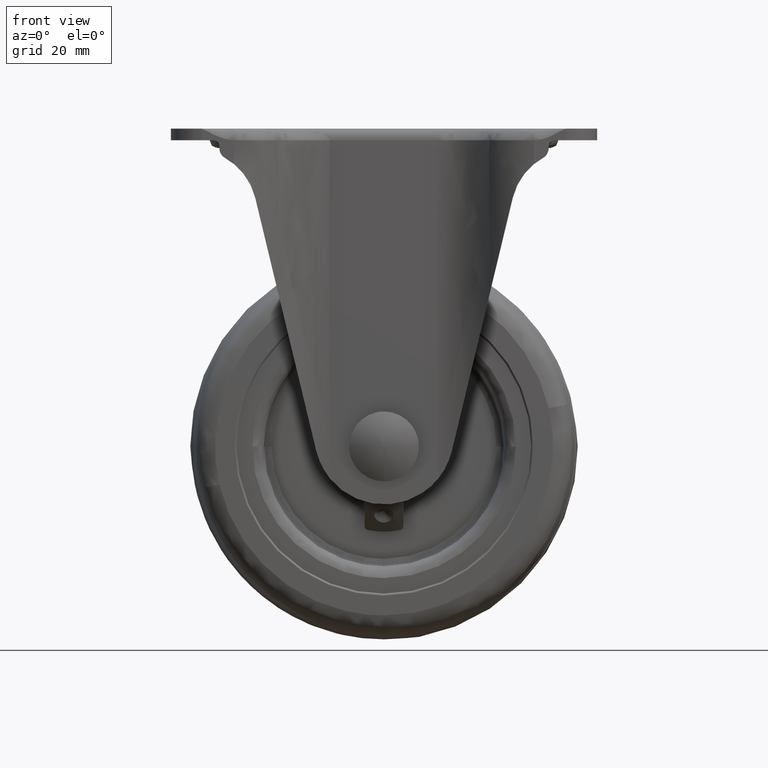
[diagram: clean part render]
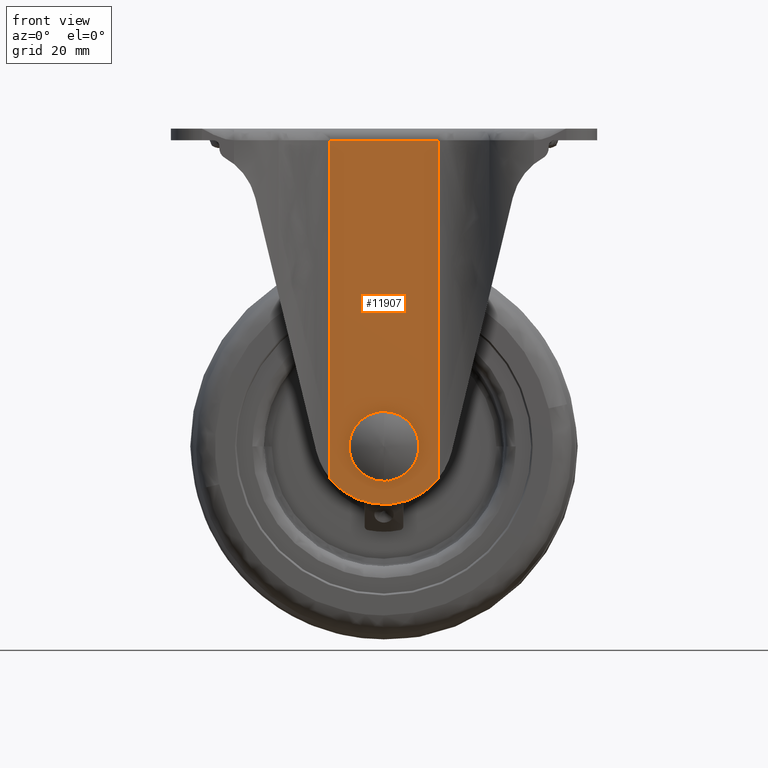
[diagram: same view with one face highlighted and labeled with its STEP entity id]
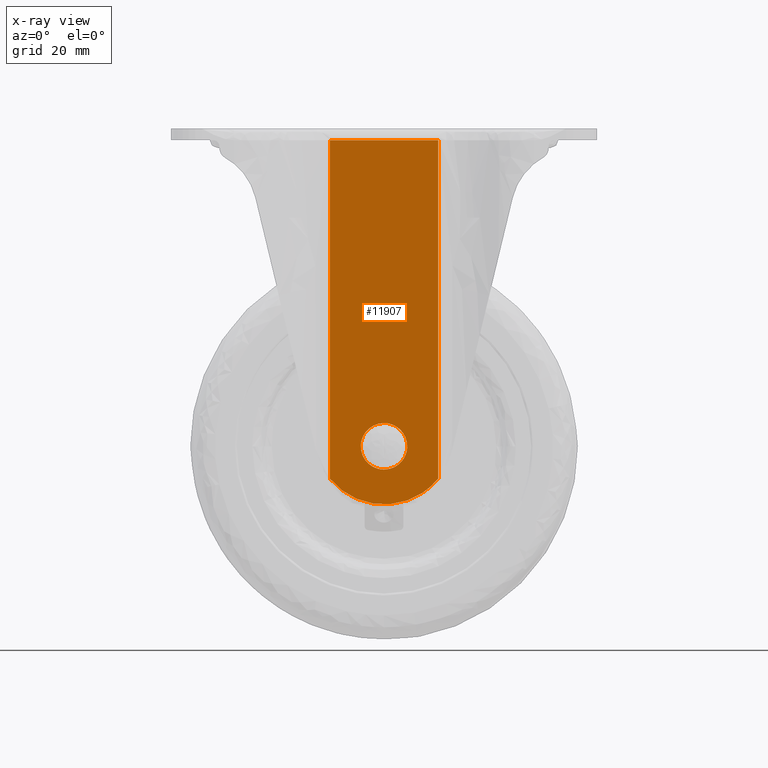
[diagram: x-ray of the same camera — body ghosted, the highlighted face saturated]
A machine part, front view. The second image highlights one B-rep face of the part: STEP entity #11907.
The next image is the same camera in x-ray: the body ghosted, the highlighted face saturated — about 0% of this face is hidden behind the body in this view.
In plain terms, the highlighted face is a freeform B-spline surface patch.
Its self-contained STEP definition (entity closure, byte-faithful):
#6728=CARTESIAN_POINT('',(5.988816775586408,-26.0,-0.366291725976449));
#6729=VERTEX_POINT('',#6728);
#6735=CARTESIAN_POINT('',(0.0,-26.0,6.000008000000000));
#6736=VERTEX_POINT('',#6735);
#6737=CARTESIAN_POINT('',(5.988816775586410,-26.000000000000004,-0.366291725976450));
#6738=CARTESIAN_POINT('',(6.000008000000000,-26.000000000000004,-0.183316824403667));
#6739=CARTESIAN_POINT('',(6.000008000000000,-26.0,0.0));
#6740=CARTESIAN_POINT('',(6.000008000000001,-26.000000000000004,6.000008000000001));
#6741=CARTESIAN_POINT('',(0.0,-26.0,6.000008000000000));
#6749=(BOUNDED_CURVE()B_SPLINE_CURVE(2,(#6737,#6738,#6739,#6740,#6741),.UNSPECIFIED.,.F.,.U.)B_SPLINE_CURVE_WITH_KNOTS((3,2,3),(0.239332962231049,0.250000000000000,0.500000000000000),.UNSPECIFIED.)CURVE()GEOMETRIC_REPRESENTATION_ITEM()RATIONAL_B_SPLINE_CURVE((0.976072041649800,0.987502787890589,1.0,0.707106781186548,1.0))REPRESENTATION_ITEM(''));
#6750=EDGE_CURVE('',#6729,#6736,#6749,.T.);
#6752=CARTESIAN_POINT('',(-5.988816775586408,-26.0,0.366291725976449));
#6753=VERTEX_POINT('',#6752);
#6754=CARTESIAN_POINT('',(0.0,-26.0,6.000008000000000));
#6755=CARTESIAN_POINT('',(-5.644243926724850,-25.999999999999996,6.000008000000001));
#6756=CARTESIAN_POINT('',(-5.988816775586409,-25.999999999999993,0.366291725976451));
#6764=(BOUNDED_CURVE()B_SPLINE_CURVE(2,(#6754,#6755,#6756),.UNSPECIFIED.,.F.,.U.)B_SPLINE_CURVE_WITH_KNOTS((3,3),(0.500000000000000,0.739332962231049),.UNSPECIFIED.)CURVE()GEOMETRIC_REPRESENTATION_ITEM()RATIONAL_B_SPLINE_CURVE((1.0,0.719603993295959,0.976072041649799))REPRESENTATION_ITEM(''));
#6765=EDGE_CURVE('',#6736,#6753,#6764,.T.);
#6839=CARTESIAN_POINT('',(0.0,-26.0,-6.000008000000000));
#6840=VERTEX_POINT('',#6839);
#6841=CARTESIAN_POINT('',(-5.988816775586409,-25.999999999999993,0.366291725976451));
#6842=CARTESIAN_POINT('',(-6.000008000000000,-25.999999999999996,0.183316824403668));
#6843=CARTESIAN_POINT('',(-6.000008000000000,-26.0,0.0));
#6844=CARTESIAN_POINT('',(-6.000008000000001,-26.000000000000004,-6.000008000000001));
#6845=CARTESIAN_POINT('',(0.0,-26.0,-6.000008000000000));
#6853=(BOUNDED_CURVE()B_SPLINE_CURVE(2,(#6841,#6842,#6843,#6844,#6845),.UNSPECIFIED.,.F.,.U.)B_SPLINE_CURVE_WITH_KNOTS((3,2,3),(0.739332962231049,0.750000000000000,1.0),.UNSPECIFIED.)CURVE()GEOMETRIC_REPRESENTATION_ITEM()RATIONAL_B_SPLINE_CURVE((0.976072041649799,0.987502787890589,1.0,0.707106781186548,1.0))REPRESENTATION_ITEM(''));
#6854=EDGE_CURVE('',#6753,#6840,#6853,.T.);
#6856=CARTESIAN_POINT('',(0.0,-26.0,-6.000008000000000));
#6857=CARTESIAN_POINT('',(5.644243926724853,-26.0,-6.000008000000002));
#6858=CARTESIAN_POINT('',(5.988816775586410,-26.000000000000004,-0.366291725976450));
#6866=(BOUNDED_CURVE()B_SPLINE_CURVE(2,(#6856,#6857,#6858),.UNSPECIFIED.,.F.,.U.)B_SPLINE_CURVE_WITH_KNOTS((3,3),(0.0,0.239332962231049),.UNSPECIFIED.)CURVE()GEOMETRIC_REPRESENTATION_ITEM()RATIONAL_B_SPLINE_CURVE((1.0,0.719603993295958,0.976072041649800))REPRESENTATION_ITEM(''));
#6867=EDGE_CURVE('',#6840,#6729,#6866,.T.);
#10573=CARTESIAN_POINT('',(-13.999994973451740,-26.0,-8.313713548463049));
#10574=VERTEX_POINT('',#10573);
#10603=CARTESIAN_POINT('',(14.0,-26.0,-8.313710008751151));
#10604=VERTEX_POINT('',#10603);
#10622=CARTESIAN_POINT('',(-13.999994973451740,-26.0,-8.313713548463049));
#10623=CARTESIAN_POINT('',(-13.160028144498460,-25.999999999999940,-9.353524862734943));
#10624=CARTESIAN_POINT('',(-11.485986119081330,-26.000000000000071,-11.008078446831391));
#10625=CARTESIAN_POINT('',(-8.654907757427537,-26.0,-12.882406310726390));
#10626=CARTESIAN_POINT('',(-5.584222103218683,-25.999999999999790,-14.232623001779160));
#10627=CARTESIAN_POINT('',(-2.303548004439267,-26.000000000000998,-14.963875006602040));
#10628=CARTESIAN_POINT('',(0.755256984787297,-25.999999999998749,-15.048859506828849));
#10629=CARTESIAN_POINT('',(3.622969045842133,-26.000000000001169,-14.707931486405650));
#10630=CARTESIAN_POINT('',(6.086088370178879,-25.999999999998899,-14.012969158889129));
#10631=CARTESIAN_POINT('',(8.678271964830250,-26.000000000000110,-12.840778947953559));
#10632=CARTESIAN_POINT('',(11.330297292281440,-26.000000000000441,-11.150775899452100));
#10633=CARTESIAN_POINT('',(13.107551472655260,-25.999999999999371,-9.418534999254296));
#10634=CARTESIAN_POINT('',(14.0,-26.0,-8.313710008751151));
#10635=B_SPLINE_CURVE_WITH_KNOTS('',3,(#10622,#10623,#10624,#10625,#10626,#10627,#10628,#10629,#10630,#10631,#10632,#10633,#10634),.UNSPECIFIED.,.F.,.U.,(4,1,1,1,1,1,1,1,1,1,4),(0.000000120385252,4.010026762772910,7.017601339928124,10.150463873659360,14.035208673219060,17.042745749974809,19.298392278745339,22.681881449467909,24.686922126725491,27.819785844706018,32.080467071894802),.UNSPECIFIED.);
#10636=EDGE_CURVE('',#10574,#10604,#10635,.T.);
#11855=CARTESIAN_POINT('',(14.0,-26.0,79.000008000000093));
#11856=VERTEX_POINT('',#11855);
#11870=CARTESIAN_POINT('',(14.0,-26.0,-8.313710008751151));
#11871=CARTESIAN_POINT('',(14.0,-26.0,79.000008000000093));
#11872=QUASI_UNIFORM_CURVE('',1,(#11870,#11871),.UNSPECIFIED.,.F.,.U.);
#11873=EDGE_CURVE('',#10604,#11856,#11872,.T.);
#11880=CARTESIAN_POINT('',(-15.398594668106229,-26.0,83.695308225881632));
#11881=CARTESIAN_POINT('',(-15.398594668106229,-26.0,-19.695302916763211));
#11882=CARTESIAN_POINT('',(15.398600445672880,-26.0,83.695308225881632));
#11883=CARTESIAN_POINT('',(15.398600445672880,-26.0,-19.695302916763222));
#11884=B_SPLINE_SURFACE_WITH_KNOTS('',1,1,((#11880,#11882),(#11881,#11883)),.UNSPECIFIED.,.F.,.F.,.U.,(2,2),(2,2),(0.0,103.390611142644800),(0.0,30.797195113779111),.UNSPECIFIED.);
#11885=ORIENTED_EDGE('',*,*,#11873,.T.);
#11886=CARTESIAN_POINT('',(-13.999994973451740,-26.000000000000799,79.000008000000093));
#11887=VERTEX_POINT('',#11886);
#11888=CARTESIAN_POINT('',(14.0,-26.0,79.000008000000093));
#11889=CARTESIAN_POINT('',(-13.999994973451740,-26.000000000000799,79.000008000000093));
#11890=QUASI_UNIFORM_CURVE('',1,(#11888,#11889),.UNSPECIFIED.,.F.,.U.);
#11891=EDGE_CURVE('',#11856,#11887,#11890,.T.);
#11892=ORIENTED_EDGE('',*,*,#11891,.T.);
#11893=CARTESIAN_POINT('',(-13.999994973451740,-26.0,-8.313713548463049));
#11894=CARTESIAN_POINT('',(-13.999994973451740,-26.000000000000799,79.000008000000093));
#11895=QUASI_UNIFORM_CURVE('',1,(#11893,#11894),.UNSPECIFIED.,.F.,.U.);
#11896=EDGE_CURVE('',#10574,#11887,#11895,.T.);
#11897=ORIENTED_EDGE('',*,*,#11896,.F.);
#11898=ORIENTED_EDGE('',*,*,#10636,.T.);
#11899=EDGE_LOOP('',(#11885,#11892,#11897,#11898));
#11900=FACE_OUTER_BOUND('',#11899,.T.);
#11901=ORIENTED_EDGE('',*,*,#6765,.F.);
#11902=ORIENTED_EDGE('',*,*,#6750,.F.);
#11903=ORIENTED_EDGE('',*,*,#6867,.F.);
#11904=ORIENTED_EDGE('',*,*,#6854,.F.);
#11905=EDGE_LOOP('',(#11901,#11902,#11903,#11904));
#11906=FACE_BOUND('',#11905,.T.);
#11907=ADVANCED_FACE('',(#11900,#11906),#11884,.T.);